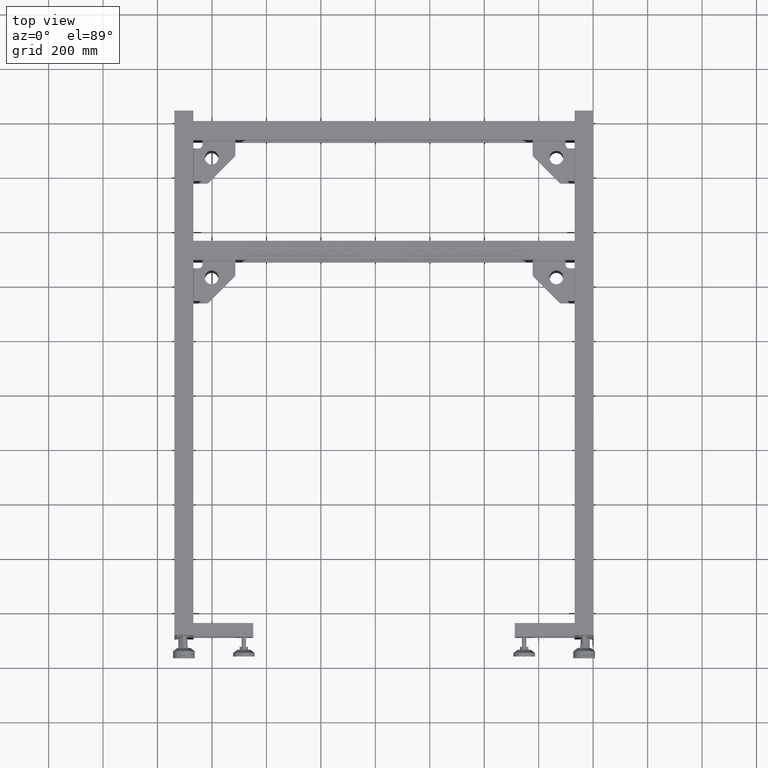
[diagram: clean part render]
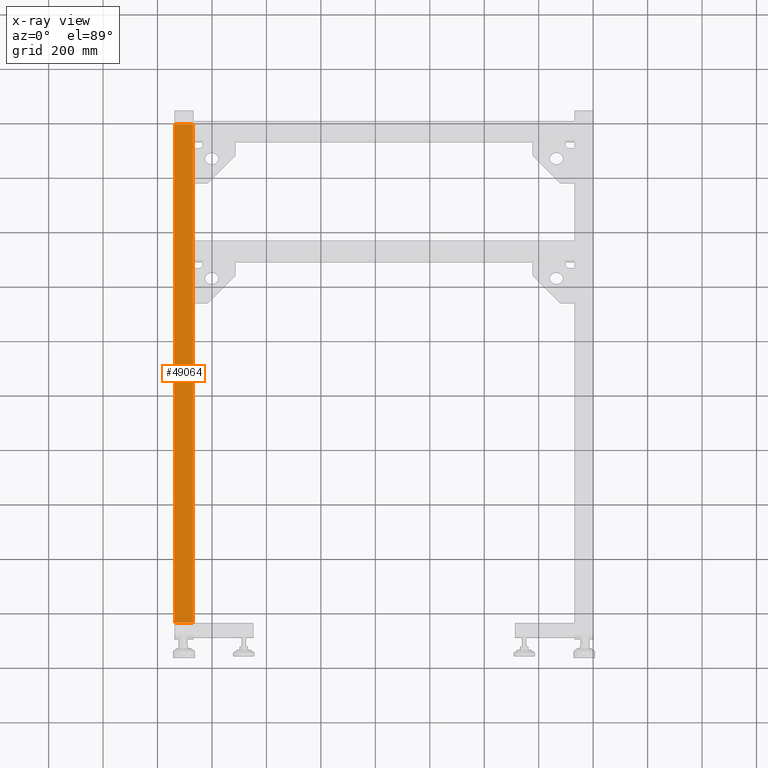
[diagram: x-ray — body ghosted, one internal face saturated and labeled with its STEP entity id]
A machine part, top view, then the same camera in x-ray: the body is ghosted and one INTERNAL B-rep face — a face not visible from any outside direction — is saturated and labeled: STEP entity #49064.
In plain terms, the highlighted planar face has unit normal (-0, 0, 1).
Its self-contained STEP definition (entity closure, byte-faithful):
#272 = DIRECTION ( 'NONE',  ( -0.000000000000000000, 0.000000000000000000, 1.000000000000000000 ) ) ;
#5791 = EDGE_LOOP ( 'NONE', ( #30553, #10347, #13241, #31210 ) ) ;
#5864 = PLANE ( 'NONE',  #76626 ) ;
#10347 = ORIENTED_EDGE ( 'NONE', *, *, #10833, .T. ) ;
#10833 = EDGE_CURVE ( 'NONE', #24438, #18272, #32053, .T. ) ;
#11985 = LINE ( 'NONE', #66640, #75965 ) ;
#13241 = ORIENTED_EDGE ( 'NONE', *, *, #29788, .F. ) ;
#14384 = VECTOR ( 'NONE', #68079, 1000.000000000000000 ) ;
#14756 = VERTEX_POINT ( 'NONE', #16375 ) ;
#16375 = CARTESIAN_POINT ( 'NONE',  ( -1270.172487437185055, 986.4410804020109254, 201.9999999999999716 ) ) ;
#17837 = DIRECTION ( 'NONE',  ( 1.000000000000000000, 0.000000000000000000, 0.000000000000000000 ) ) ;
#18272 = VERTEX_POINT ( 'NONE', #22868 ) ;
#20267 = CARTESIAN_POINT ( 'NONE',  ( -1336.172487437185055, -844.5589195979888473, 201.9999999999999716 ) ) ;
#22868 = CARTESIAN_POINT ( 'NONE',  ( -1270.172487437185055, -844.5589195979888473, 201.9999999999999716 ) ) ;
#23063 = VECTOR ( 'NONE', #38836, 1000.000000000000000 ) ;
#24438 = VERTEX_POINT ( 'NONE', #20267 ) ;
#29788 = EDGE_CURVE ( 'NONE', #14756, #18272, #75907, .T. ) ;
#30257 = CARTESIAN_POINT ( 'NONE',  ( -1336.172487437185055, 986.4410804020136538, 201.9999999999999716 ) ) ;
#30553 = ORIENTED_EDGE ( 'NONE', *, *, #51337, .T. ) ;
#31210 = ORIENTED_EDGE ( 'NONE', *, *, #52140, .T. ) ;
#31740 = CARTESIAN_POINT ( 'NONE',  ( -1336.172487437185055, 986.4410804020136538, 201.9999999999999716 ) ) ;
#32053 = LINE ( 'NONE', #75160, #74311 ) ;
#38470 = DIRECTION ( 'NONE',  ( 1.000000000000000000, 0.000000000000000000, 0.000000000000000000 ) ) ;
#38836 = DIRECTION ( 'NONE',  ( -1.000000000000000078E-15, -1.000000000000000000, -0.000000000000000000 ) ) ;
#38932 = LINE ( 'NONE', #74043, #14384 ) ;
#40861 = VERTEX_POINT ( 'NONE', #30257 ) ;
#49064 = ADVANCED_FACE ( 'NONE', ( #54912 ), #5864, .T. ) ;
#51337 = EDGE_CURVE ( 'NONE', #40861, #24438, #38932, .T. ) ;
#51577 = CARTESIAN_POINT ( 'NONE',  ( -1270.172487437185055, 986.4410804020136538, 201.9999999999999716 ) ) ;
#52140 = EDGE_CURVE ( 'NONE', #14756, #40861, #11985, .T. ) ;
#54912 = FACE_OUTER_BOUND ( 'NONE', #5791, .T. ) ;
#60251 = DIRECTION ( 'NONE',  ( -1.000000000000000000, 1.682156097916908074E-15, -0.000000000000000000 ) ) ;
#66640 = CARTESIAN_POINT ( 'NONE',  ( -1336.172487437185055, 986.4410804020136538, 201.9999999999999716 ) ) ;
#68079 = DIRECTION ( 'NONE',  ( -1.000000000000000078E-15, -1.000000000000000000, -0.000000000000000000 ) ) ;
#74043 = CARTESIAN_POINT ( 'NONE',  ( -1336.172487437185055, 986.4410804020136538, 201.9999999999999716 ) ) ;
#74311 = VECTOR ( 'NONE', #38470, 1000.000000000000000 ) ;
#75160 = CARTESIAN_POINT ( 'NONE',  ( -1336.172487437185055, -844.5589195979888473, 201.9999999999999716 ) ) ;
#75907 = LINE ( 'NONE', #51577, #23063 ) ;
#75965 = VECTOR ( 'NONE', #60251, 1000.000000000000000 ) ;
#76626 = AXIS2_PLACEMENT_3D ( 'NONE', #31740, #272, #17837 ) ;